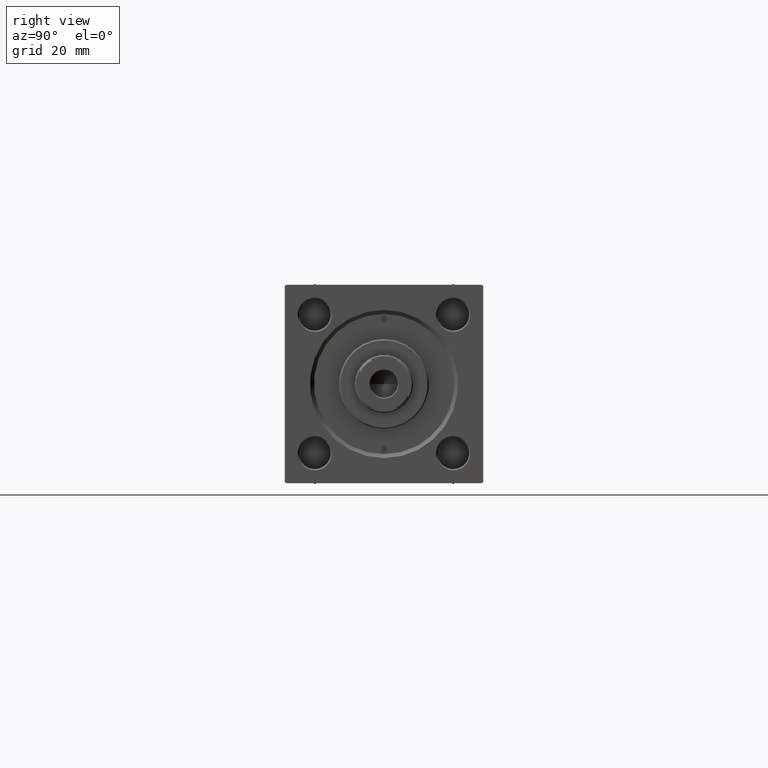
[diagram: clean part render]
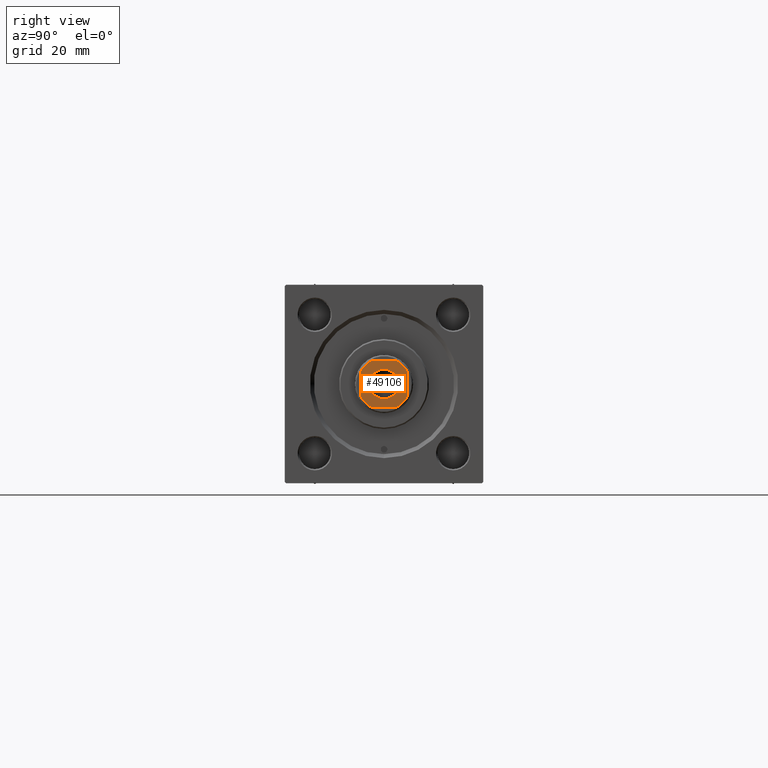
[diagram: same view with one face highlighted and labeled with its STEP entity id]
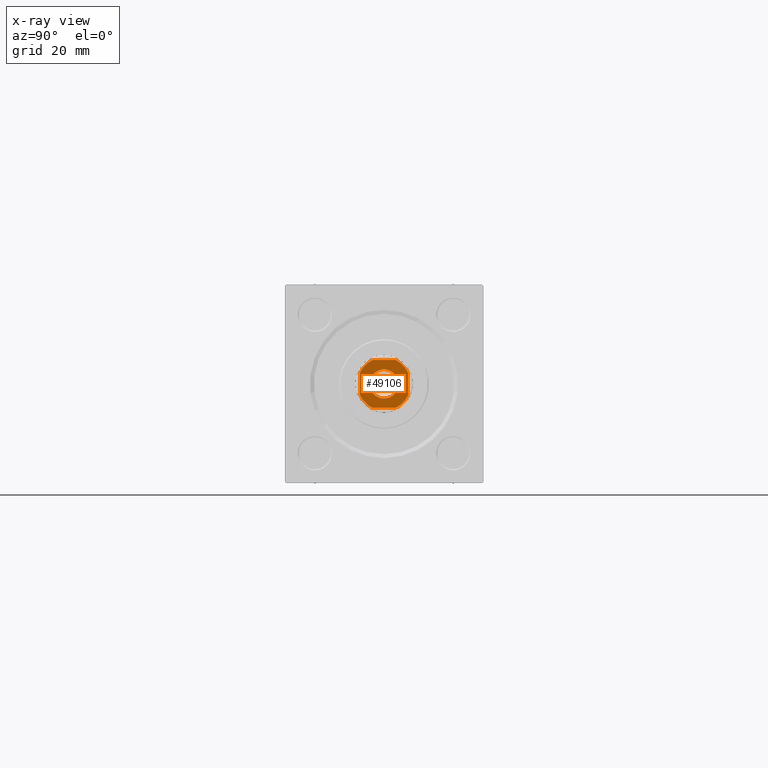
[diagram: x-ray of the same camera — body ghosted, the highlighted face saturated]
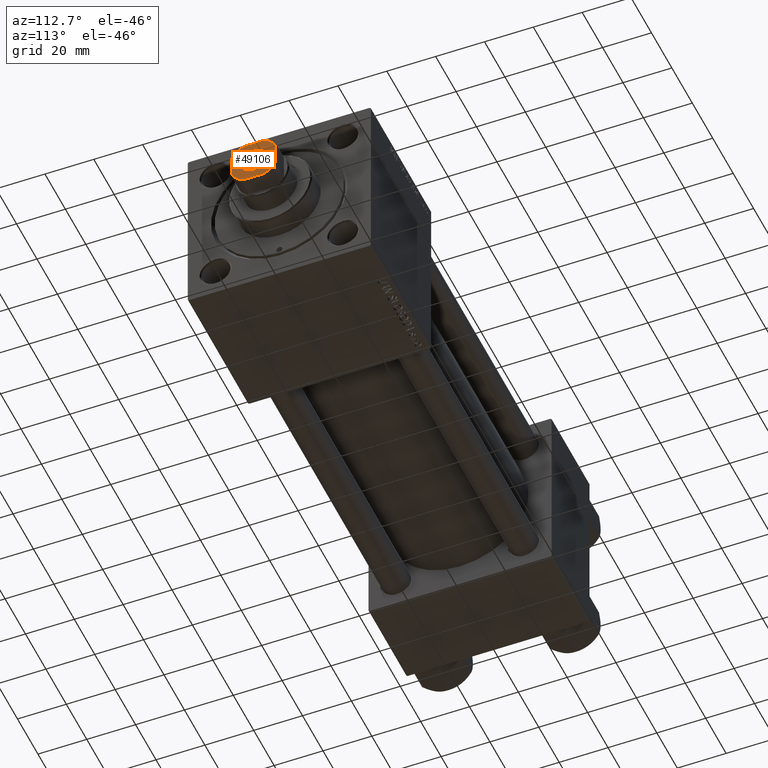
[diagram: same view with one face highlighted and labeled with its STEP entity id]
A machine part, right view. The second image highlights one B-rep face of the part: STEP entity #49106.
The next image is the same camera in x-ray: the body ghosted, the highlighted face saturated — about 0% of this face is hidden behind the body in this view.
A second angle (auxiliary view) of the same face is appended — the face is thin or edge-on in the first view.
In plain terms, the highlighted planar face has unit normal (1, 0, 0).
Its self-contained STEP definition (entity closure, byte-faithful):
#286 = CARTESIAN_POINT ( 'NONE',  ( 0.000000000000000000, 0.000000000000000000, 202.0000000000000000 ) ) ;
#1146 = VERTEX_POINT ( 'NONE', #4544 ) ;
#1525 = ORIENTED_EDGE ( 'NONE', *, *, #15295, .T. ) ;
#2431 = LINE ( 'NONE', #41126, #30637 ) ;
#2856 = EDGE_CURVE ( 'NONE', #44109, #4512, #2431, .T. ) ;
#3732 = ORIENTED_EDGE ( 'NONE', *, *, #22799, .T. ) ;
#4512 = VERTEX_POINT ( 'NONE', #49278 ) ;
#4544 = CARTESIAN_POINT ( 'NONE',  ( 4.358898943540723714, -9.000000000000001776, 202.0000000000000000 ) ) ;
#5328 = DIRECTION ( 'NONE',  ( 1.000000000000000000, 0.000000000000000000, 0.000000000000000000 ) ) ;
#6417 = EDGE_CURVE ( 'NONE', #13447, #45591, #43681, .T. ) ;
#6630 = AXIS2_PLACEMENT_3D ( 'NONE', #48548, #6814, #17522 ) ;
#6814 = DIRECTION ( 'NONE',  ( 0.000000000000000000, -0.000000000000000000, -1.000000000000000000 ) ) ;
#6976 = CARTESIAN_POINT ( 'NONE',  ( -9.000000000000003553, -4.358898943540721049, 202.0000000000000000 ) ) ;
#7625 = CARTESIAN_POINT ( 'NONE',  ( 0.000000000000000000, 0.000000000000000000, 202.0000000000000000 ) ) ;
#9502 = CARTESIAN_POINT ( 'NONE',  ( 0.000000000000000000, 0.000000000000000000, 202.0000000000000000 ) ) ;
#9788 = LINE ( 'NONE', #22014, #48377 ) ;
#9894 = CIRCLE ( 'NONE', #6630, 5.549999999999971401 ) ;
#10384 = CARTESIAN_POINT ( 'NONE',  ( -9.000000000000003553, 4.358898943540721937, 202.0000000000000000 ) ) ;
#10551 = DIRECTION ( 'NONE',  ( 1.000000000000000000, 0.000000000000000000, 0.000000000000000000 ) ) ;
#12626 = CARTESIAN_POINT ( 'NONE',  ( 0.000000000000000000, 0.000000000000000000, 202.0000000000000000 ) ) ;
#13256 = ORIENTED_EDGE ( 'NONE', *, *, #20432, .T. ) ;
#13390 = CARTESIAN_POINT ( 'NONE',  ( -9.000000000000003553, 8.999999999999998224, 202.0000000000000000 ) ) ;
#13447 = VERTEX_POINT ( 'NONE', #10384 ) ;
#13635 = DIRECTION ( 'NONE',  ( -1.000000000000000000, -0.000000000000000000, -0.000000000000000000 ) ) ;
#14247 = CIRCLE ( 'NONE', #42690, 10.00000000000002309 ) ;
#14444 = CARTESIAN_POINT ( 'NONE',  ( -4.358898943540723714, -9.000000000000001776, 202.0000000000000000 ) ) ;
#14533 = VERTEX_POINT ( 'NONE', #15398 ) ;
#14918 = CIRCLE ( 'NONE', #43361, 10.00000000000002309 ) ;
#15295 = EDGE_CURVE ( 'NONE', #23491, #49455, #9894, .T. ) ;
#15398 = CARTESIAN_POINT ( 'NONE',  ( -4.358898943540729931, 8.999999999999998224, 202.0000000000000000 ) ) ;
#17522 = DIRECTION ( 'NONE',  ( 1.000000000000000000, 0.000000000000000000, 0.000000000000000000 ) ) ;
#17688 = VECTOR ( 'NONE', #13635, 1000.000000000000000 ) ;
#17905 = EDGE_LOOP ( 'NONE', ( #1525, #26982 ) ) ;
#18917 = CIRCLE ( 'NONE', #47348, 9.999999999999984013 ) ;
#20096 = DIRECTION ( 'NONE',  ( 1.000000000000000000, 0.000000000000000000, 0.000000000000000000 ) ) ;
#20285 = DIRECTION ( 'NONE',  ( 9.637352644315595243E-17, -1.000000000000000000, 0.000000000000000000 ) ) ;
#20404 = DIRECTION ( 'NONE',  ( 1.000000000000000000, 0.000000000000000000, 0.000000000000000000 ) ) ;
#20432 = EDGE_CURVE ( 'NONE', #4512, #21095, #18917, .T. ) ;
#20856 = ORIENTED_EDGE ( 'NONE', *, *, #6417, .T. ) ;
#21095 = VERTEX_POINT ( 'NONE', #44749 ) ;
#21405 = ORIENTED_EDGE ( 'NONE', *, *, #2856, .T. ) ;
#21621 = DIRECTION ( 'NONE',  ( -0.000000000000000000, 0.000000000000000000, 1.000000000000000000 ) ) ;
#22014 = CARTESIAN_POINT ( 'NONE',  ( -9.000000000000001776, -9.000000000000001776, 202.0000000000000000 ) ) ;
#22799 = EDGE_CURVE ( 'NONE', #45591, #30284, #14918, .T. ) ;
#23491 = VERTEX_POINT ( 'NONE', #24614 ) ;
#24614 = CARTESIAN_POINT ( 'NONE',  ( 5.549999999999971401, 0.000000000000000000, 202.0000000000000000 ) ) ;
#25044 = DIRECTION ( 'NONE',  ( -0.000000000000000000, 0.000000000000000000, 1.000000000000000000 ) ) ;
#25814 = ORIENTED_EDGE ( 'NONE', *, *, #45441, .T. ) ;
#26096 = AXIS2_PLACEMENT_3D ( 'NONE', #29018, #21621, #5328 ) ;
#26626 = EDGE_LOOP ( 'NONE', ( #21405, #13256, #32420, #25814, #20856, #3732, #27179, #44467 ) ) ;
#26781 = CIRCLE ( 'NONE', #28385, 10.00000000000002309 ) ;
#26982 = ORIENTED_EDGE ( 'NONE', *, *, #36499, .T. ) ;
#27179 = ORIENTED_EDGE ( 'NONE', *, *, #27722, .T. ) ;
#27318 = DIRECTION ( 'NONE',  ( 1.000000000000000000, 0.000000000000000000, 0.000000000000000000 ) ) ;
#27722 = EDGE_CURVE ( 'NONE', #30284, #1146, #9788, .T. ) ;
#28304 = VECTOR ( 'NONE', #20285, 1000.000000000000000 ) ;
#28385 = AXIS2_PLACEMENT_3D ( 'NONE', #12626, #43422, #36282 ) ;
#28552 = DIRECTION ( 'NONE',  ( -0.000000000000000000, 0.000000000000000000, 1.000000000000000000 ) ) ;
#28938 = DIRECTION ( 'NONE',  ( -1.927470528863119049E-16, 1.000000000000000000, -0.000000000000000000 ) ) ;
#29018 = CARTESIAN_POINT ( 'NONE',  ( 0.000000000000000000, 0.000000000000000000, 202.0000000000000000 ) ) ;
#30284 = VERTEX_POINT ( 'NONE', #14444 ) ;
#30637 = VECTOR ( 'NONE', #28938, 1000.000000000000000 ) ;
#31558 = EDGE_CURVE ( 'NONE', #1146, #44109, #14247, .T. ) ;
#32333 = PLANE ( 'NONE',  #26096 ) ;
#32420 = ORIENTED_EDGE ( 'NONE', *, *, #36946, .T. ) ;
#32491 = CARTESIAN_POINT ( 'NONE',  ( -9.000000000000003553, 8.999999999999998224, 202.0000000000000000 ) ) ;
#33092 = AXIS2_PLACEMENT_3D ( 'NONE', #7625, #38685, #20096 ) ;
#34688 = CARTESIAN_POINT ( 'NONE',  ( 0.000000000000000000, 0.000000000000000000, 202.0000000000000000 ) ) ;
#35847 = CARTESIAN_POINT ( 'NONE',  ( -5.549999999999971401, 6.796789735267776268E-16, 202.0000000000000000 ) ) ;
#36152 = FACE_BOUND ( 'NONE', #17905, .T. ) ;
#36282 = DIRECTION ( 'NONE',  ( 1.000000000000000000, 0.000000000000000000, 0.000000000000000000 ) ) ;
#36499 = EDGE_CURVE ( 'NONE', #49455, #23491, #50165, .T. ) ;
#36946 = EDGE_CURVE ( 'NONE', #21095, #14533, #47498, .T. ) ;
#37155 = FACE_OUTER_BOUND ( 'NONE', #26626, .T. ) ;
#38685 = DIRECTION ( 'NONE',  ( 0.000000000000000000, -0.000000000000000000, -1.000000000000000000 ) ) ;
#39008 = DIRECTION ( 'NONE',  ( -0.000000000000000000, 0.000000000000000000, 1.000000000000000000 ) ) ;
#41126 = CARTESIAN_POINT ( 'NONE',  ( 8.999999999999996447, 8.999999999999998224, 202.0000000000000000 ) ) ;
#42690 = AXIS2_PLACEMENT_3D ( 'NONE', #286, #28552, #20404 ) ;
#43361 = AXIS2_PLACEMENT_3D ( 'NONE', #34688, #39008, #27318 ) ;
#43422 = DIRECTION ( 'NONE',  ( -0.000000000000000000, 0.000000000000000000, 1.000000000000000000 ) ) ;
#43631 = DIRECTION ( 'NONE',  ( 1.000000000000000000, 0.000000000000000000, 0.000000000000000000 ) ) ;
#43681 = LINE ( 'NONE', #32491, #28304 ) ;
#44109 = VERTEX_POINT ( 'NONE', #48911 ) ;
#44467 = ORIENTED_EDGE ( 'NONE', *, *, #31558, .T. ) ;
#44749 = CARTESIAN_POINT ( 'NONE',  ( 4.358898943540642890, 8.999999999999998224, 202.0000000000000000 ) ) ;
#45441 = EDGE_CURVE ( 'NONE', #14533, #13447, #26781, .T. ) ;
#45591 = VERTEX_POINT ( 'NONE', #6976 ) ;
#47348 = AXIS2_PLACEMENT_3D ( 'NONE', #9502, #25044, #43631 ) ;
#47498 = LINE ( 'NONE', #13390, #17688 ) ;
#48377 = VECTOR ( 'NONE', #10551, 1000.000000000000000 ) ;
#48548 = CARTESIAN_POINT ( 'NONE',  ( 0.000000000000000000, 0.000000000000000000, 202.0000000000000000 ) ) ;
#48911 = CARTESIAN_POINT ( 'NONE',  ( 8.999999999999998224, -4.358898943540728155, 202.0000000000000000 ) ) ;
#49106 = ADVANCED_FACE ( 'NONE', ( #36152, #37155 ), #32333, .T. ) ;
#49278 = CARTESIAN_POINT ( 'NONE',  ( 8.999999999999998224, 4.358898943540643778, 202.0000000000000000 ) ) ;
#49455 = VERTEX_POINT ( 'NONE', #35847 ) ;
#50165 = CIRCLE ( 'NONE', #33092, 5.549999999999971401 ) ;